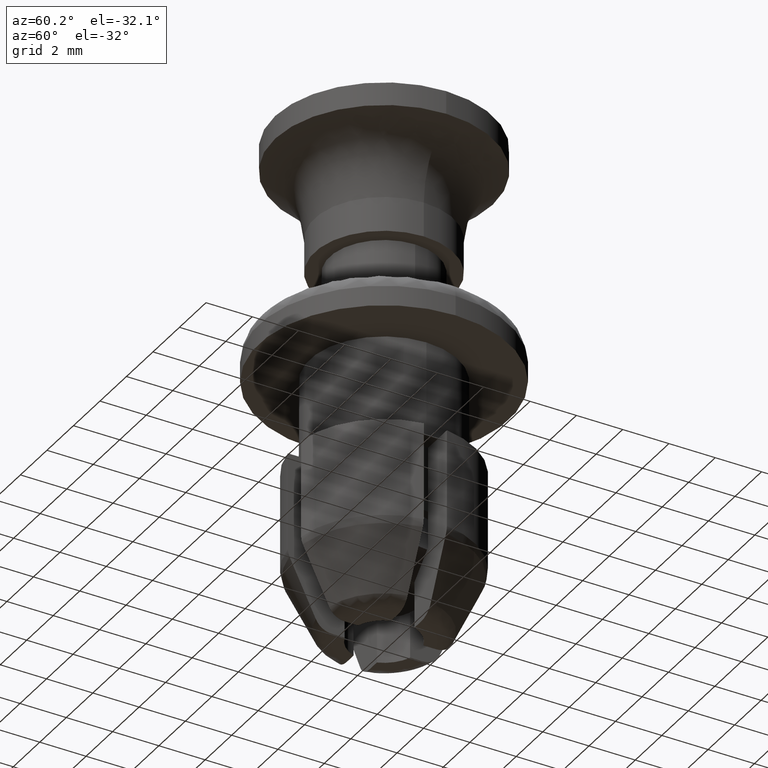
[diagram: clean part render]
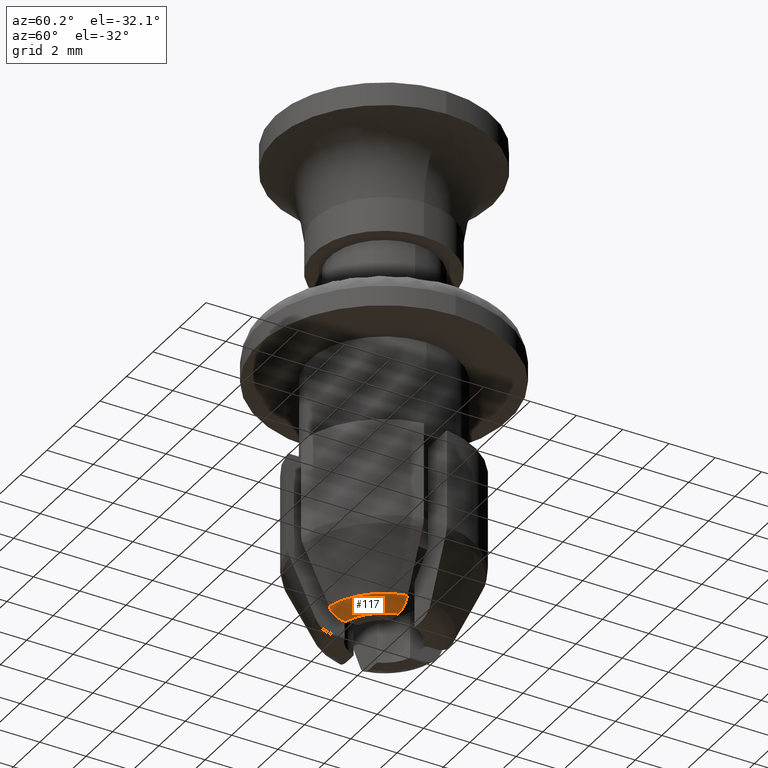
[diagram: same view with one face highlighted and labeled with its STEP entity id]
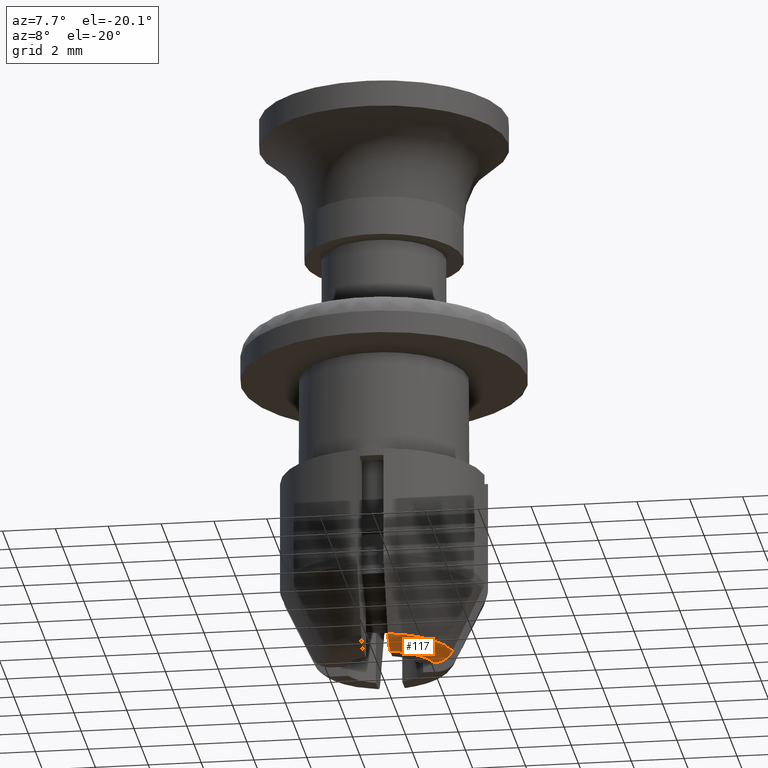
[diagram: same view with one face highlighted and labeled with its STEP entity id]
A machine part, auxiliary view. The second image highlights one B-rep face of the part: STEP entity #117.
A second angle (auxiliary view) of the same face is appended — the face is thin or edge-on in the first view.
In plain terms, the highlighted face is a freeform B-spline surface patch.
Its self-contained STEP definition (entity closure, byte-faithful):
#117=ADVANCED_FACE('',(#243),#242,.T.);
#242=( BOUNDED_SURFACE() B_SPLINE_SURFACE( 2,2,((#1051,#1052,#1053,#1054,#1055),(#1056,#1057,#1058,#1059,#1060),(#1061,#1062,#1063,#1064,#1065)), .UNSPECIFIED.,.F.,.F.,.F.) B_SPLINE_SURFACE_WITH_KNOTS((3,3),(3,2,3),(0.00000000000E+00,1.00000000000E+00),(0.00000000000E+00,5.00000000000E-01,1.00000000000E+00), .UNSPECIFIED. ) GEOMETRIC_REPRESENTATION_ITEM() RATIONAL_B_SPLINE_SURFACE(((1.00000000000E+00,8.39903950225E-01,1.00000000000E+00,8.39903950225E-01,1.00000000000E+00),(8.25512471237E-01,6.93351185552E-01,8.25512471237E-01,6.93351185552E-01,8.25512471237E-01),(1.00000000000E+00,8.39903950225E-01,1.00000000000E+00,8.39903950225E-01,1.00000000000E+00))) REPRESENTATION_ITEM('') SURFACE() );
#243=FACE_OUTER_BOUND('',#1066,.T.);
#1051=CARTESIAN_POINT('',(2.65964136788E+00,-4.99652873187E-01,-1.30584579684E+01));
#1052=CARTESIAN_POINT('',(2.46393723876E+00,-4.62886964974E-01,-1.35003000000E+01));
#1053=CARTESIAN_POINT('',(1.98762926723E+00,-3.73405484738E-01,-1.35003000000E+01));
#1054=CARTESIAN_POINT('',(1.51132129571E+00,-2.83924004502E-01,-1.35003000000E+01));
#1055=CARTESIAN_POINT('',(1.31561716659E+00,-2.47158096289E-01,-1.30584579684E+01));
#1056=CARTESIAN_POINT('',(2.31804019867E+00,-2.31798846118E+00,-1.30584579684E+01));
#1057=CARTESIAN_POINT('',(2.14747207478E+00,-2.14742414428E+00,-1.35003000000E+01));
#1058=CARTESIAN_POINT('',(1.73234053175E+00,-1.73230186678E+00,-1.35003000000E+01));
#1059=CARTESIAN_POINT('',(1.31720898872E+00,-1.31717958928E+00,-1.35003000000E+01));
#1060=CARTESIAN_POINT('',(1.14664086483E+00,-1.14661527238E+00,-1.30584579684E+01));
#1061=CARTESIAN_POINT('',(4.99712235581E-01,-2.65963021510E+00,-1.30584579684E+01));
#1062=CARTESIAN_POINT('',(4.62941959311E-01,-2.46392690663E+00,-1.35003000000E+01));
#1063=CARTESIAN_POINT('',(3.73449848024E-01,-1.98762093242E+00,-1.35003000000E+01));
#1064=CARTESIAN_POINT('',(2.83957736738E-01,-1.51131495822E+00,-1.35003000000E+01));
#1065=CARTESIAN_POINT('',(2.47187460468E-01,-1.31561164975E+00,-1.30584579684E+01));
#1066=EDGE_LOOP('',(#1640,#1641,#1642,#1643));
#1640=ORIENTED_EDGE('',*,*,#2032,.F.);
#1641=ORIENTED_EDGE('',*,*,#2033,.T.);
#1642=ORIENTED_EDGE('',*,*,#2034,.F.);
#1643=ORIENTED_EDGE('',*,*,#2035,.F.);
#2032=EDGE_CURVE('',#2384,#2385,#2386,.T.);
#2033=EDGE_CURVE('',#2384,#2392,#2393,.T.);
#2034=EDGE_CURVE('',#2399,#2392,#2400,.T.);
#2035=EDGE_CURVE('',#2385,#2399,#2406,.T.);
#2384=VERTEX_POINT('',#3643);
#2385=VERTEX_POINT('',#3644);
#2386=(BOUNDED_CURVE() B_SPLINE_CURVE(3,(#3645,#3646,#3647,#3648,#3649,#3650),.UNSPECIFIED.,.F.,.F.) B_SPLINE_CURVE_WITH_KNOTS((4,2,4),(3.24611043927E-03,3.68094730946E-03,4.11578417966E-03),.UNSPECIFIED.) CURVE() GEOMETRIC_REPRESENTATION_ITEM() RATIONAL_B_SPLINE_CURVE((1.00000000000E+00,1.00000000000E+00,1.00000000000E+00,1.00000000000E+00,1.00000000000E+00,1.00000000000E+00)) REPRESENTATION_ITEM('') );
#2392=VERTEX_POINT('',#3651);
#2393=CIRCLE('',#3655,2.70602087899E+00);
#2399=VERTEX_POINT('',#3656);
#2400=(BOUNDED_CURVE() B_SPLINE_CURVE(3,(#3657,#3658,#3659,#3660,#3661,#3662),.UNSPECIFIED.,.F.,.F.) B_SPLINE_CURVE_WITH_KNOTS((4,2,4),(4.28628102214E-03,4.72080951359E-03,5.15533800505E-03),.UNSPECIFIED.) CURVE() GEOMETRIC_REPRESENTATION_ITEM() RATIONAL_B_SPLINE_CURVE((1.00000000000E+00,1.00000000000E+00,1.00000000000E+00,1.00000000000E+00,1.00000000000E+00,1.00000000000E+00)) REPRESENTATION_ITEM('') );
#2406=CIRCLE('',#3666,2.02240000000E+00);
#3643=CARTESIAN_POINT('',(2.65942644146E+00,-5.00000000000E-01,-1.30587841873E+01));
#3644=CARTESIAN_POINT('',(1.95961775865E+00,-5.00000000000E-01,-1.35003000000E+01));
#3645=CARTESIAN_POINT('',(2.65942644146E+00,-5.00000000000E-01,-1.30587841873E+01));
#3646=CARTESIAN_POINT('',(2.59861902028E+00,-5.00000000000E-01,-1.31912170710E+01));
#3647=CARTESIAN_POINT('',(2.49740680038E+00,-5.00000000000E-01,-1.33051335631E+01));
#3648=CARTESIAN_POINT('',(2.25163325167E+00,-5.00000000000E-01,-1.34590001962E+01));
#3649=CARTESIAN_POINT('',(2.10501243795E+00,-5.00000000000E-01,-1.35003000000E+01));
#3650=CARTESIAN_POINT('',(1.95961775865E+00,-5.00000000000E-01,-1.35003000000E+01));
#3651=CARTESIAN_POINT('',(5.00000000000E-01,-2.65942644146E+00,-1.30587841873E+01));
#3652=CARTESIAN_POINT('',(0.00000000000E+00,0.00000000000E+00,-1.30587841873E+01));
#3653=DIRECTION('',(0.00000000000E+00,0.00000000000E+00,-1.00000000000E+00));
#3654=DIRECTION('',(1.00000000000E+00,-0.00000000000E+00,-0.00000000000E+00));
#3655=AXIS2_PLACEMENT_3D('',#3652,#3653,#3654);
#3656=CARTESIAN_POINT('',(5.00000000000E-01,-1.95961775865E+00,-1.35003000000E+01));
#3657=CARTESIAN_POINT('',(5.00000000000E-01,-1.95961775865E+00,-1.35003000000E+01));
#3658=CARTESIAN_POINT('',(5.00000000000E-01,-2.10523021489E+00,-1.35003000000E+01));
#3659=CARTESIAN_POINT('',(5.00000000000E-01,-2.25077643428E+00,-1.34595655480E+01));
#3660=CARTESIAN_POINT('',(5.00000000000E-01,-2.49848132678E+00,-1.33044318890E+01));
#3661=CARTESIAN_POINT('',(5.00000000000E-01,-2.59900524852E+00,-1.31903759020E+01));
#3662=CARTESIAN_POINT('',(5.00000000000E-01,-2.65942644146E+00,-1.30587841873E+01));
#3663=CARTESIAN_POINT('',(0.00000000000E+00,0.00000000000E+00,-1.35003000000E+01));
#3664=DIRECTION('',(0.00000000000E+00,0.00000000000E+00,-1.00000000000E+00));
#3665=DIRECTION('',(1.00000000000E+00,-0.00000000000E+00,-0.00000000000E+00));
#3666=AXIS2_PLACEMENT_3D('',#3663,#3664,#3665);